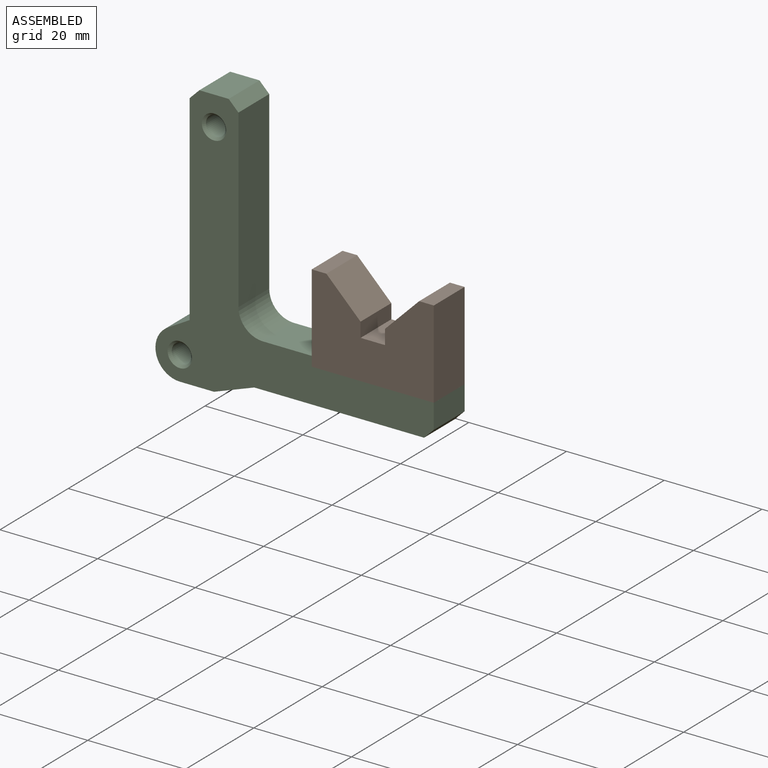
[diagram: assembled view]
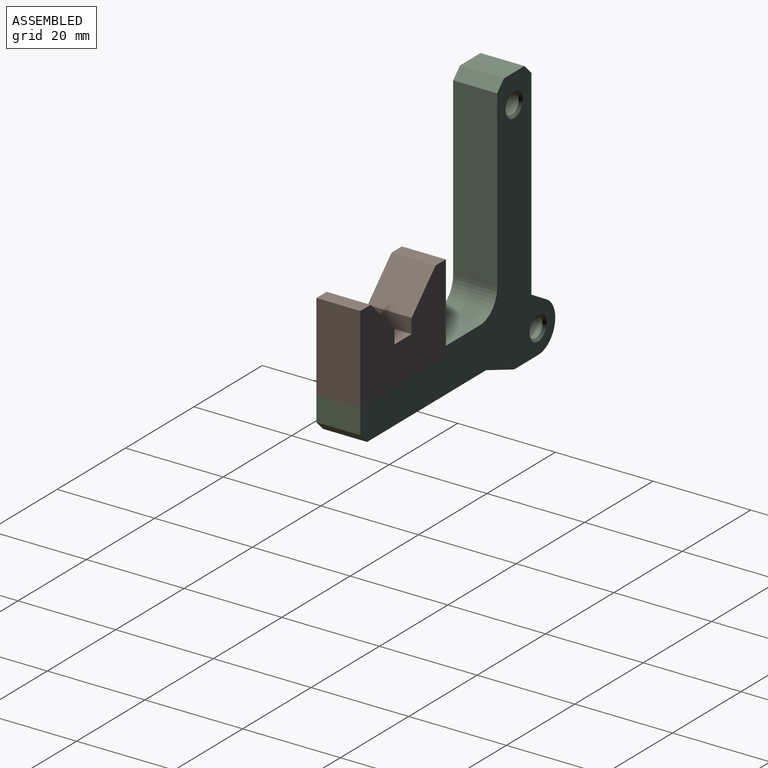
[diagram: assembled view, second angle]
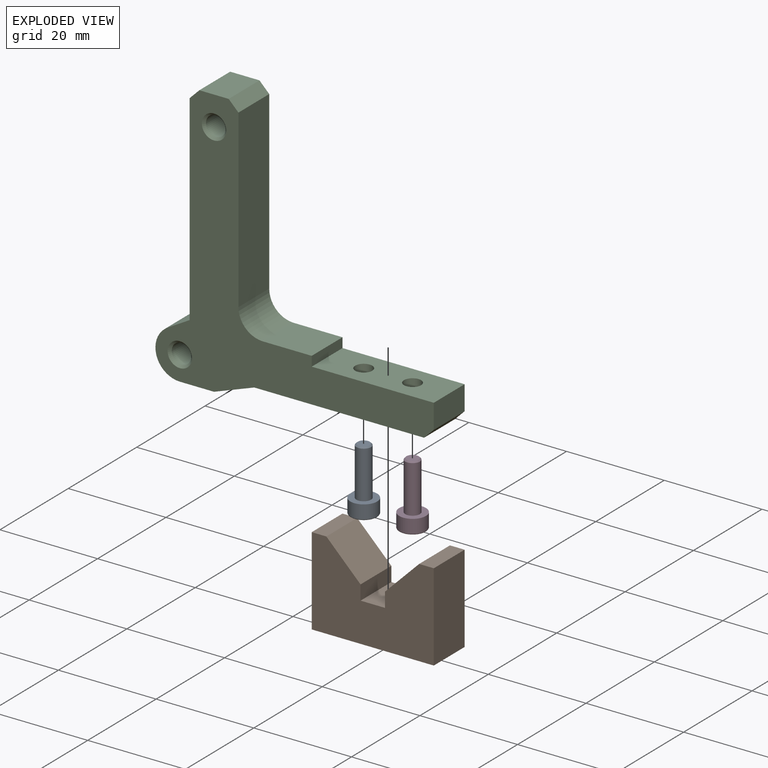
[diagram: exploded view]
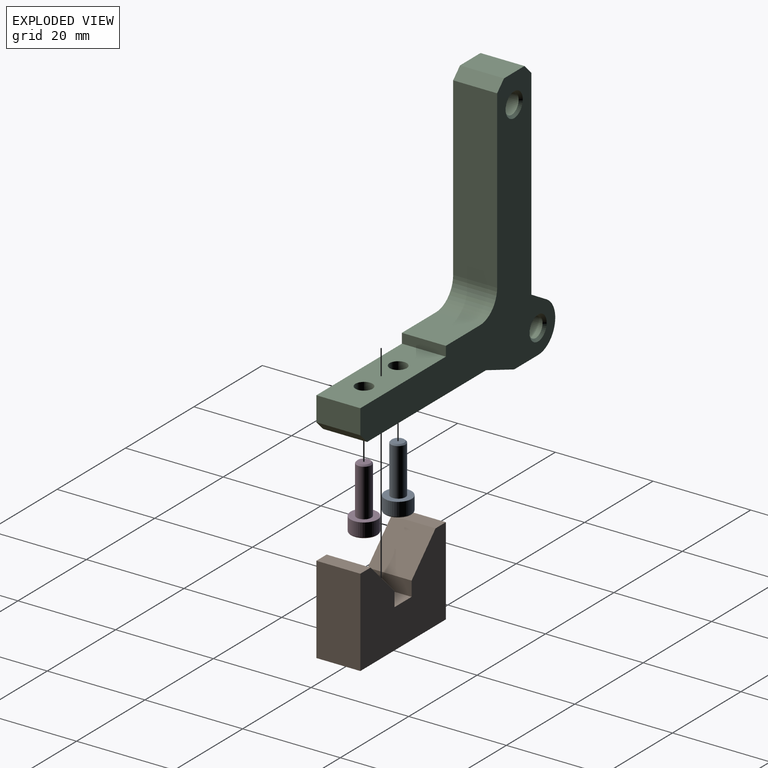
[diagram: exploded view, second angle]
ASSEMBLY  parts=4 mates=3
PART A: 14 faces, bbox 6x6x13 mm
  f0: cylinder r=2.75mm len=5.5mm, axis (0,0,-1), area 47.1mm2, adj f1,f13
  f1: torus R=2.48mm, axis (0,0,-1), area 7.2mm2, adj f0,f12
  f2: cone r=1.36mm half-angle=45deg, axis (0,0,1), area 3.3mm2, adj f3,f11
  f3: cylinder r=1.5mm len=9.73mm, axis (0,0,-1), area 91.7mm2, adj f2,f13
  f4: cone r=0.72mm half-angle=60deg, axis (0,0,1), area 6.2mm2, adj f5,f6,f7,f8,f9,f10
  f5: plane 1.47x1.25mm, normal (0.87,0.5,0), area 2mm2, adj f4,f6,f10,f12
  f6: plane 1.47x1.44mm, normal (0,1,0), area 2mm2, adj f4,f5,f7,f12
  f7: plane 1.47x1.25mm, normal (-0.87,0.5,0), area 2mm2, adj f4,f6,f8,f12
  f8: plane 1.47x1.25mm, normal (-0.87,-0.5,0), area 2mm2, adj f4,f7,f9,f12
  f9: plane 1.44x1.43mm, normal (0,-1,0), area 2mm2, adj f4,f8,f10,f12
  f10: plane 1.47x1.25mm, normal (0.87,-0.5,0), area 2mm2, adj f4,f5,f9,f12
  f11: plane 2.46x2.46mm, normal (0,0,-1), area 4.7mm2, adj f2
  f12: plane 4.95x4.95mm, normal (0,0,1), area 13.8mm2, adj f1,f5,f6,f7,f8,f9,f10
  f13: plane 5.5x5.5mm, normal (0,0,-1), area 16.7mm2, adj f0,f3
PART B: 16 faces, bbox 25x9x18 mm
  f0: plane 25x9mm, normal (0,0,-1), area 215.2mm2, adj f1,f6,f7,f9,f10,f15
  f1: plane 18x9mm, normal (1,0,0), area 162mm2, adj f0,f2,f6,f7
  f2: plane 9x3mm, normal (0,0,1), area 27mm2, adj f1,f3,f6,f7
  f3: plane 9x7mm, normal (-0.71,0,0.71), area 89.1mm2, adj f2,f4,f6,f7
  f4: plane 9x3mm, normal (-1,0,0), area 27mm2, adj f3,f5,f6,f7
  f5: plane 9x5mm, normal (0,0,1), area 45mm2, adj f4,f6,f7,f13
  f6: plane 25x18mm, normal (0,-1,0), area 351mm2, adj f0,f1,f2,f3,f4,f5,f10,f11
  f7: plane 25x18mm, normal (0,1,0), area 351mm2, adj f0,f1,f2,f3,f4,f5,f10,f11
  f8: cone r=0mm half-angle=59deg, axis (0,0,-1), area 5.7mm2, adj f9
  f9: cylinder r=1.25mm len=7mm, axis (0,0,-1), area 55mm2, adj f0,f8
  f10: plane 18x9mm, normal (-1,0,0), area 162mm2, adj f0,f6,f7,f11
  f11: plane 9x3mm, normal (0,0,1), area 27mm2, adj f6,f7,f10,f12
  f12: plane 9x7mm, normal (0.71,0,0.71), area 89.1mm2, adj f6,f7,f11,f13
  f13: plane 9x3mm, normal (1,0,0), area 27mm2, adj f5,f6,f7,f12
  f14: cone r=0mm half-angle=59deg, axis (0,0,-1), area 5.7mm2, adj f15
  f15: cylinder r=1.25mm len=7mm, axis (0,0,-1), area 55mm2, adj f0,f14
PART C: 30 faces, bbox 57x9x55 mm
  f0: plane 9x4.5mm, normal (-0.5,0,0.87), area 46.8mm2, adj f1,f13,f14,f15
  f1: cylinder r=5mm len=9.33mm, axis (0,1,0), area 117.8mm2, adj f0,f2,f14,f15
  f2: plane 9x7mm, normal (0,0,-1), area 63mm2, adj f1,f3,f14,f15
  f3: plane 9x8.24mm, normal (0.34,0,-0.94), area 78.9mm2, adj f2,f4,f14,f15
  f4: plane 34.76x9mm, normal (0,0,-1), area 265.3mm2, adj f3,f14,f15,f20,f26,f29
  f5: plane 9x5mm, normal (1,0,0), area 45mm2, adj f6,f14,f15,f20
  f6: plane 25x9mm, normal (0,0,1), area 205.8mm2, adj f5,f7,f14,f15,f24,f27
  f7: plane 9x2mm, normal (1,0,0), area 18mm2, adj f6,f8,f14,f15
  f8: plane 10x9mm, normal (0,0,1), area 90mm2, adj f7,f14,f15,f23
  f9: plane 36x9mm, normal (1,0,0), area 324mm2, adj f14,f15,f22,f23
  f10: plane 9x6mm, normal (0,0,1), area 54mm2, adj f14,f15,f21,f22
  f11: cylinder r=2mm len=8mm, axis (0,1,0), area 100.5mm2, adj f16,f18
  f12: cylinder r=2mm len=8mm, axis (0,1,0), area 100.5mm2, adj f17,f19
  f13: plane 41.07x9mm, normal (-1,0,0), area 369.6mm2, adj f0,f14,f15,f21
  f14: plane 57x55mm, normal (0,-1,0), area 880.1mm2, adj f0,f1,f2,f3,f4,f5,f6,f7
  f15: plane 57x55mm, normal (0,1,0), area 880.1mm2, adj f0,f1,f2,f3,f4,f5,f6,f7
  f16: cone r=2.5mm half-angle=45deg, axis (0,1,0), area 10mm2, adj f11,f15
  f17: cone r=2.5mm half-angle=45deg, axis (0,1,0), area 10mm2, adj f12,f15
  f18: cone r=2mm half-angle=45deg, axis (0,-1,0), area 10mm2, adj f11,f14
  f19: cone r=2mm half-angle=45deg, axis (0,-1,0), area 10mm2, adj f12,f14
  f20: plane 9x2mm, normal (0.71,0,-0.71), area 25.5mm2, adj f4,f5,f14,f15
  f21: plane 9x2mm, normal (-0.71,0,0.71), area 25.5mm2, adj f10,f13,f14,f15
  f22: plane 9x2mm, normal (0.71,0,0.71), area 25.5mm2, adj f9,f10,f14,f15
  f23: cylinder r=5mm len=9mm, axis (0,-1,0), area 70.7mm2, adj f8,f9,f14,f15
  f24: cylinder r=1.75mm len=4mm, axis (0,0,-1), area 44mm2, adj f6,f25
  f25: plane 5.5x5.5mm, normal (0,0,-1), area 14.1mm2, adj f24,f26
  f26: cylinder r=2.75mm len=5.5mm, axis (0,0,-1), area 51.8mm2, adj f4,f25
  f27: cylinder r=1.75mm len=4mm, axis (0,0,-1), area 44mm2, adj f6,f28
  f28: plane 5.5x5.5mm, normal (0,0,-1), area 14.1mm2, adj f27,f29
  f29: cylinder r=2.75mm len=5.5mm, axis (0,0,-1), area 51.8mm2, adj f4,f28
PART D: same geometry as A
PLACE A rot(axis=(1,0,0),180deg) t=(34.5,0,1)mm
PLACE B t=(39.5,0,5)mm
PLACE C at identity fixed
PLACE D rot(axis=(1,0,0),180deg) t=(44.5,0,1)mm
MATE fastened B.f14 <-> C.f27  axis (0,0,-1) through (34.5,0,5)mm
MATE fastened C.f27 <-> A.f4  axis (0,0,-1) through (34.5,0,1)mm
MATE fastened C.f24 <-> D.f4  axis (0,0,-1) through (44.5,0,1)mm
